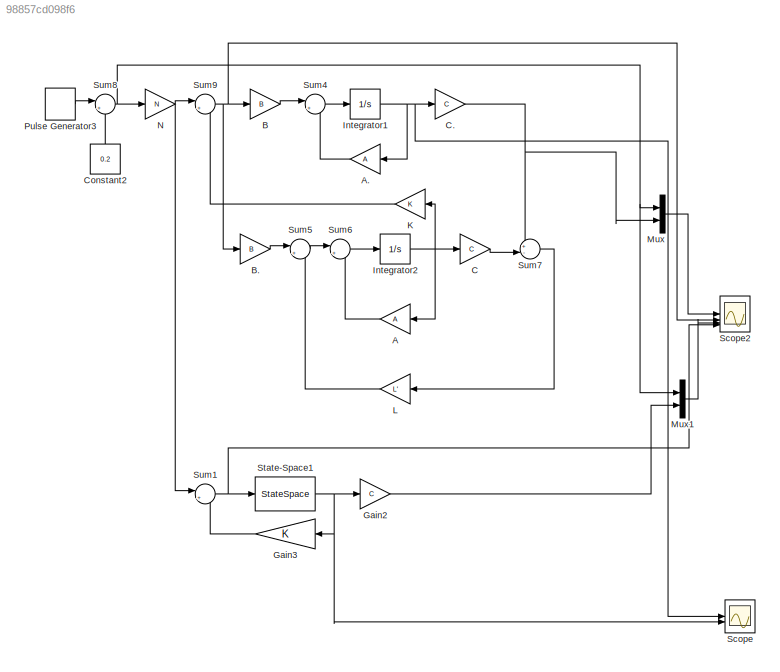
MODEL slx_98857cd098f6
KIND model
CONFIG AbsTol = auto
CONFIG EnableMultiTasking = off
CONFIG FixedStep = auto
CONFIG MaxStep = auto
CONFIG MinStep = auto
CONFIG RelTol = 1e-3
CONFIG SampleTimeConstraint = Unconstrained
CONFIG SolverName = VariableStepAuto
CONFIG StartTime = 0.0
CONFIG StopTime = 100
BLOCK [Gain] A
  Gain = A
  Multiplication = Matrix(K*u) (u vector)
  NameLocation = top
BLOCK [Gain] A.
  Gain = A
  Multiplication = Matrix(K*u) (u vector)
  NameLocation = top
BLOCK [Gain] B
  Gain = B
  Multiplication = Matrix(K*u) (u vector)
BLOCK [Gain] B.
  Gain = B
  Multiplication = Matrix(K*u) (u vector)
BLOCK [Gain] C
  Gain = C
  Multiplication = Matrix(K*u) (u vector)
BLOCK [Gain] C.
  Gain = C
  Multiplication = Matrix(K*u) (u vector)
BLOCK [Constant] Constant2
  NameLocation = right
  Value = 0.2
BLOCK [Gain] Gain2
  Gain = C
  Multiplication = Matrix(K*u) (u vector)
BLOCK [Gain] Gain3
  Gain = K
  Multiplication = Matrix(K*u) (u vector)
  NameLocation = top
BLOCK [Integrator] Integrator1
BLOCK [Integrator] Integrator2
  InitialCondition = [1,1,1,1]
BLOCK [Gain] K
  Gain = K
  Multiplication = Matrix(K*u) (u vector)
  NameLocation = top
BLOCK [Gain] L
  Gain = L'
  Multiplication = Matrix(K*u) (u vector)
  NameLocation = top
BLOCK [Mux] Mux
  DisplayOption = bar
  Inputs = 2
BLOCK [Mux] Mux1
  DisplayOption = bar
  Inputs = 2
BLOCK [Gain] N
  Gain = N
  Multiplication = Matrix(K*u) (u vector)
BLOCK [DiscretePulseGenerator] Pulse Generator3
  Amplitude = 1.5
  Period = 30
  PhaseDelay = 15
  PulseType = Time based
  PulseWidth = 50
BLOCK [Scope] Scope
  Floating = off
  NumInputPorts = 2
  ScopeSpecificationString = Simulink.scopes.TimeScopeBlockCfg('CurrentConfiguration', extmgr.ConfigurationSet(extmgr.Configuration('Core','General UI',true,'FigureColor',[1 1 1]),extmgr.Configuration('Core','Source UI',true),extmgr.Configuration('Sources','WiredSimulink',true,'DataLoggingVariableName','ScopeData1'),extmgr.Configuration('Visuals','Time Domain',true,'SerializedDisplays',{struct('MinYLimReal','-166.70371','MaxY...<+3369ch>
BLOCK [Scope] Scope2
  Floating = off
  NumInputPorts = 4
  ScopeSpecificationString = Simulink.scopes.TimeScopeBlockCfg('CurrentConfiguration', extmgr.ConfigurationSet(extmgr.Configuration('Core','General UI',true,'FigureColor',[1 1 1]),extmgr.Configuration('Core','Source UI',true),extmgr.Configuration('Sources','WiredSimulink',true,'DataLoggingVariableName','ScopeData2'),extmgr.Configuration('Visuals','Time Domain',true,'SerializedDisplays',{struct('MinYLimReal','-41.55088','MaxYL...<+4756ch>
BLOCK [StateSpace] State-Space1
  A = A
  B = B
  C = eye(4)
  D = [0;0;0;0]
  InitialCondition = [0;0;0;0]
BLOCK [Sum] Sum1
  Inputs = |+-
BLOCK [Sum] Sum4
  Inputs = |++
BLOCK [Sum] Sum5
  Inputs = |++
BLOCK [Sum] Sum6
  Inputs = |++
BLOCK [Sum] Sum7
  Inputs = +-|
BLOCK [Sum] Sum8
  Inputs = |+-
BLOCK [Sum] Sum9
  Inputs = |+-
LINE A.:1 -> Sum4:2
LINE A:1 -> Sum6:2
LINE B.:1 -> Sum5:1
LINE B:1 -> Sum4:1
NET C.:1 -> Mux:2, Sum7:1
LINE C:1 -> Sum7:2
LINE Constant2:1 -> Sum8:2
LINE Gain2:1 -> Mux1:2
LINE Gain3:1 -> Sum1:2
NET Integrator1:1 -> A.:1, C.:1, Scope:1
NET Integrator2:1 -> A:1, C:1, K:1
LINE K:1 -> Sum9:2
LINE L:1 -> Sum5:2
LINE Mux1:1 -> Scope2:3
LINE Mux:1 -> Scope2:1
NET N:1 -> Sum1:1, Sum9:1
LINE Pulse Generator3:1 -> Sum8:1
NET State-Space1:1 -> Gain2:1, Gain3:1, Scope:2
NET Sum1:1 -> Scope2:4, State-Space1:1
LINE Sum4:1 -> Integrator1:1
LINE Sum5:1 -> Sum6:1
LINE Sum6:1 -> Integrator2:1
LINE Sum7:1 -> L:1
NET Sum8:1 -> Mux1:1, Mux:1, N:1
NET Sum9:1 -> B.:1, B:1, Scope2:2
note: NET lines group one-source signal fan-out (src -> all destinations, sorted); 1:1 wires keep LINE
